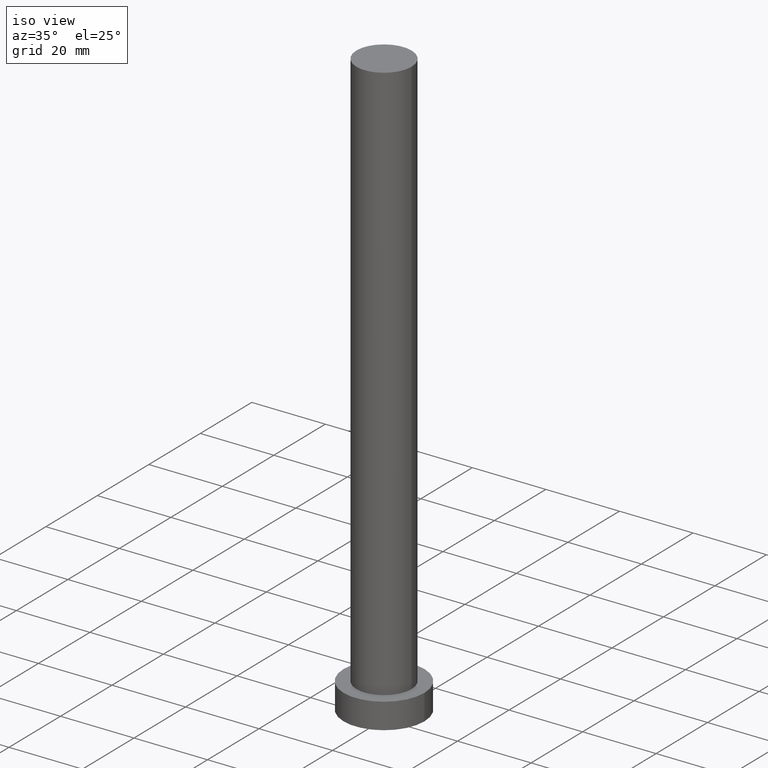
[diagram: clean part render]
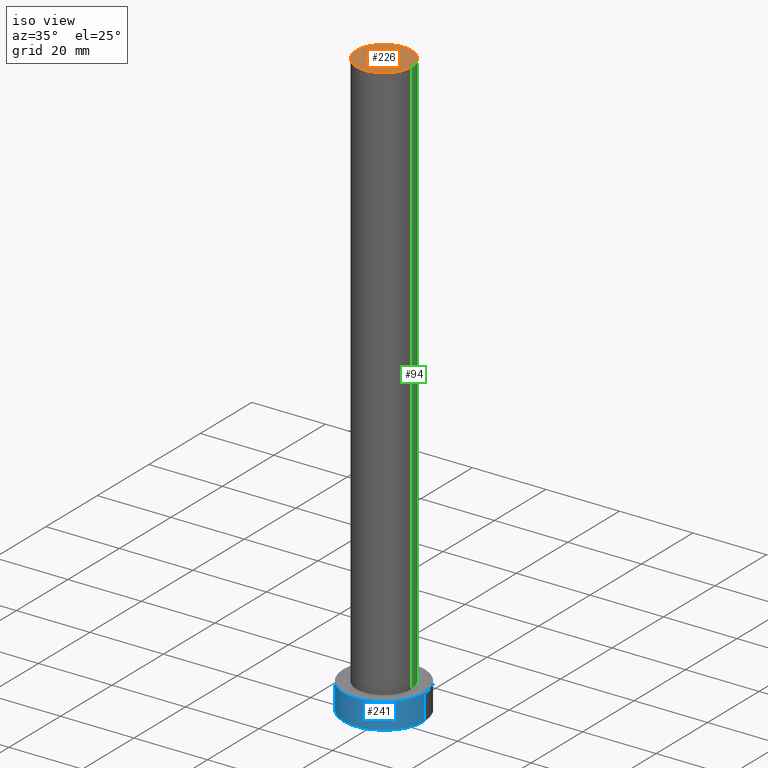
[diagram: same view with three faces highlighted in distinct colors, each labeled with its STEP entity id]
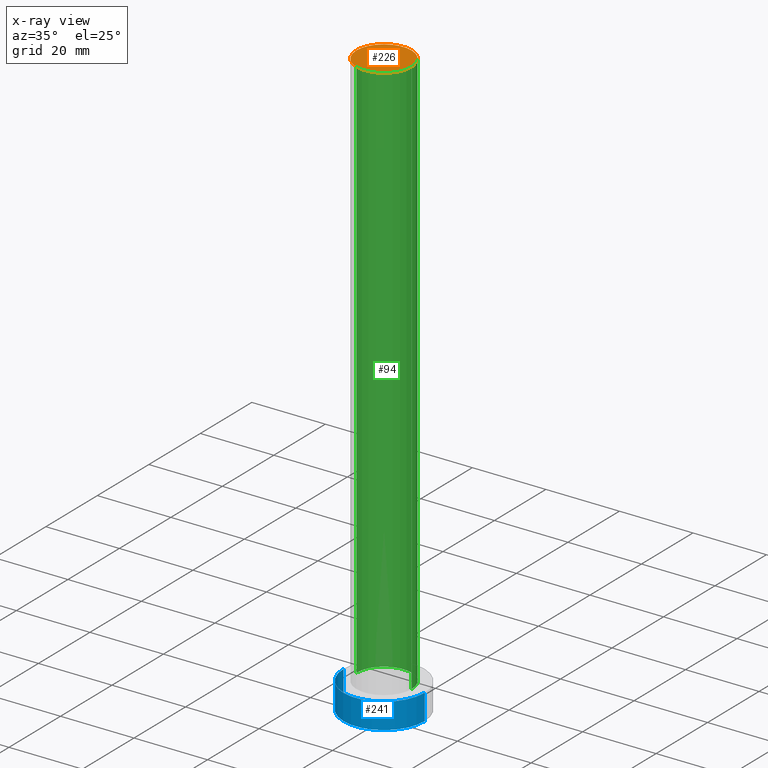
[diagram: x-ray of the same camera — body ghosted, the three highlighted faces saturated]
A machine part, iso view with three faces highlighted in distinct colors.
The next image is the same camera in x-ray (body ghosted, the three faces saturated) — at least one of them is partly hidden behind the body in this view.
Their STEP definitions:

[orange] entity #226 — the highlighted planar face has unit normal (0, 0, 1).
#1 = DIRECTION ( 'NONE',  ( 0.000000000000000000, 0.000000000000000000, 1.000000000000000000 ) ) ;
#13 = DIRECTION ( 'NONE',  ( 0.000000000000000000, 0.000000000000000000, 1.000000000000000000 ) ) ;
#48 = CARTESIAN_POINT ( 'NONE',  ( 7.500000000000000000, 9.184850993605147944E-16, 160.0000000000000000 ) ) ;
#60 = DIRECTION ( 'NONE',  ( 1.000000000000000000, 0.000000000000000000, 0.000000000000000000 ) ) ;
#61 = AXIS2_PLACEMENT_3D ( 'NONE', #218, #124, #145 ) ;
#66 = PLANE ( 'NONE',  #61 ) ;
#78 = VERTEX_POINT ( 'NONE', #161 ) ;
#80 = EDGE_CURVE ( 'NONE', #186, #78, #255, .T. ) ;
#95 = CARTESIAN_POINT ( 'NONE',  ( 0.000000000000000000, 0.000000000000000000, 160.0000000000000000 ) ) ;
#109 = EDGE_LOOP ( 'NONE', ( #129, #128 ) ) ;
#124 = DIRECTION ( 'NONE',  ( 0.000000000000000000, 0.000000000000000000, 1.000000000000000000 ) ) ;
#128 = ORIENTED_EDGE ( 'NONE', *, *, #80, .T. ) ;
#129 = ORIENTED_EDGE ( 'NONE', *, *, #233, .T. ) ;
#138 = AXIS2_PLACEMENT_3D ( 'NONE', #237, #1, #60 ) ;
#143 = AXIS2_PLACEMENT_3D ( 'NONE', #95, #13, #201 ) ;
#145 = DIRECTION ( 'NONE',  ( 1.000000000000000000, 0.000000000000000000, -0.000000000000000000 ) ) ;
#161 = CARTESIAN_POINT ( 'NONE',  ( -7.500000000000000000, 0.000000000000000000, 160.0000000000000000 ) ) ;
#162 = FACE_OUTER_BOUND ( 'NONE', #109, .T. ) ;
#163 = CIRCLE ( 'NONE', #143, 7.500000000000000000 ) ;
#186 = VERTEX_POINT ( 'NONE', #48 ) ;
#201 = DIRECTION ( 'NONE',  ( 1.000000000000000000, 0.000000000000000000, 0.000000000000000000 ) ) ;
#218 = CARTESIAN_POINT ( 'NONE',  ( 0.000000000000000000, 0.000000000000000000, 160.0000000000000000 ) ) ;
#226 = ADVANCED_FACE ( 'NONE', ( #162 ), #66, .T. ) ;
#233 = EDGE_CURVE ( 'NONE', #78, #186, #163, .T. ) ;
#237 = CARTESIAN_POINT ( 'NONE',  ( 0.000000000000000000, 0.000000000000000000, 160.0000000000000000 ) ) ;
#255 = CIRCLE ( 'NONE', #138, 7.500000000000000000 ) ;

[blue] entity #241 — the highlighted cylindrical surface (partial cylindrical patch) has radius 11 mm, axis along (-0, -0, -1).
#2 = DIRECTION ( 'NONE',  ( 0.000000000000000000, 0.000000000000000000, 1.000000000000000000 ) ) ;
#8 = EDGE_CURVE ( 'NONE', #103, #221, #65, .T. ) ;
#10 = DIRECTION ( 'NONE',  ( -0.000000000000000000, -0.000000000000000000, -1.000000000000000000 ) ) ;
#26 = AXIS2_PLACEMENT_3D ( 'NONE', #222, #10, #98 ) ;
#30 = ORIENTED_EDGE ( 'NONE', *, *, #49, .T. ) ;
#49 = EDGE_CURVE ( 'NONE', #58, #245, #215, .T. ) ;
#56 = VECTOR ( 'NONE', #232, 1000.000000000000000 ) ;
#58 = VERTEX_POINT ( 'NONE', #135 ) ;
#65 = LINE ( 'NONE', #191, #56 ) ;
#68 = EDGE_CURVE ( 'NONE', #58, #103, #104, .T. ) ;
#70 = CIRCLE ( 'NONE', #242, 11.00000000000000000 ) ;
#77 = ORIENTED_EDGE ( 'NONE', *, *, #207, .T. ) ;
#84 = DIRECTION ( 'NONE',  ( -0.000000000000000000, -0.000000000000000000, -1.000000000000000000 ) ) ;
#92 = CARTESIAN_POINT ( 'NONE',  ( 11.00000000000000000, 1.347111479062088405E-15, 0.000000000000000000 ) ) ;
#96 = ORIENTED_EDGE ( 'NONE', *, *, #8, .F. ) ;
#98 = DIRECTION ( 'NONE',  ( -1.000000000000000000, 0.000000000000000000, 0.000000000000000000 ) ) ;
#103 = VERTEX_POINT ( 'NONE', #209 ) ;
#104 = CIRCLE ( 'NONE', #197, 11.00000000000000000 ) ;
#107 = DIRECTION ( 'NONE',  ( 0.000000000000000000, 0.000000000000000000, 1.000000000000000000 ) ) ;
#121 = CARTESIAN_POINT ( 'NONE',  ( 0.000000000000000000, 0.000000000000000000, 7.000000000000000000 ) ) ;
#135 = CARTESIAN_POINT ( 'NONE',  ( -11.00000000000000000, 0.000000000000000000, 7.000000000000000000 ) ) ;
#141 = CARTESIAN_POINT ( 'NONE',  ( -11.00000000000000000, 0.000000000000000000, 7.000000000000000000 ) ) ;
#166 = ORIENTED_EDGE ( 'NONE', *, *, #68, .F. ) ;
#169 = EDGE_LOOP ( 'NONE', ( #96, #166, #30, #77 ) ) ;
#178 = DIRECTION ( 'NONE',  ( 1.000000000000000000, 0.000000000000000000, 0.000000000000000000 ) ) ;
#190 = FACE_OUTER_BOUND ( 'NONE', #169, .T. ) ;
#191 = CARTESIAN_POINT ( 'NONE',  ( 11.00000000000000000, 1.347111479062088405E-15, 7.000000000000000000 ) ) ;
#197 = AXIS2_PLACEMENT_3D ( 'NONE', #121, #2, #178 ) ;
#199 = DIRECTION ( 'NONE',  ( 1.000000000000000000, 0.000000000000000000, 0.000000000000000000 ) ) ;
#205 = CYLINDRICAL_SURFACE ( 'NONE', #26, 11.00000000000000000 ) ;
#207 = EDGE_CURVE ( 'NONE', #245, #221, #70, .T. ) ;
#209 = CARTESIAN_POINT ( 'NONE',  ( 11.00000000000000000, 1.347111479062088405E-15, 7.000000000000000000 ) ) ;
#215 = LINE ( 'NONE', #141, #223 ) ;
#221 = VERTEX_POINT ( 'NONE', #92 ) ;
#222 = CARTESIAN_POINT ( 'NONE',  ( 0.000000000000000000, 0.000000000000000000, 7.000000000000000000 ) ) ;
#223 = VECTOR ( 'NONE', #84, 1000.000000000000000 ) ;
#232 = DIRECTION ( 'NONE',  ( -0.000000000000000000, -0.000000000000000000, -1.000000000000000000 ) ) ;
#239 = CARTESIAN_POINT ( 'NONE',  ( 0.000000000000000000, 0.000000000000000000, 0.000000000000000000 ) ) ;
#241 = ADVANCED_FACE ( 'NONE', ( #190 ), #205, .T. ) ;
#242 = AXIS2_PLACEMENT_3D ( 'NONE', #239, #107, #199 ) ;
#245 = VERTEX_POINT ( 'NONE', #248 ) ;
#248 = CARTESIAN_POINT ( 'NONE',  ( -11.00000000000000000, 0.000000000000000000, 0.000000000000000000 ) ) ;

[green] entity #94 — the highlighted cylindrical surface (edge-blend (fillet) strip) has radius 7.5 mm, axis along (-0, -0, -1).
#1 = DIRECTION ( 'NONE',  ( 0.000000000000000000, 0.000000000000000000, 1.000000000000000000 ) ) ;
#9 = ORIENTED_EDGE ( 'NONE', *, *, #148, .T. ) ;
#19 = CARTESIAN_POINT ( 'NONE',  ( -7.500000000000000000, 0.000000000000000000, 160.0000000000000000 ) ) ;
#20 = DIRECTION ( 'NONE',  ( 0.000000000000000000, 0.000000000000000000, 1.000000000000000000 ) ) ;
#25 = EDGE_CURVE ( 'NONE', #78, #76, #120, .T. ) ;
#34 = ORIENTED_EDGE ( 'NONE', *, *, #25, .F. ) ;
#37 = VECTOR ( 'NONE', #85, 1000.000000000000000 ) ;
#39 = DIRECTION ( 'NONE',  ( 1.000000000000000000, 0.000000000000000000, 0.000000000000000000 ) ) ;
#44 = CARTESIAN_POINT ( 'NONE',  ( 7.500000000000000000, 9.184850993605147944E-16, 7.000000000000000000 ) ) ;
#45 = DIRECTION ( 'NONE',  ( -1.000000000000000000, 0.000000000000000000, 0.000000000000000000 ) ) ;
#48 = CARTESIAN_POINT ( 'NONE',  ( 7.500000000000000000, 9.184850993605147944E-16, 160.0000000000000000 ) ) ;
#55 = ORIENTED_EDGE ( 'NONE', *, *, #71, .T. ) ;
#59 = VERTEX_POINT ( 'NONE', #44 ) ;
#60 = DIRECTION ( 'NONE',  ( 1.000000000000000000, 0.000000000000000000, 0.000000000000000000 ) ) ;
#71 = EDGE_CURVE ( 'NONE', #59, #76, #79, .T. ) ;
#76 = VERTEX_POINT ( 'NONE', #90 ) ;
#78 = VERTEX_POINT ( 'NONE', #161 ) ;
#79 = CIRCLE ( 'NONE', #240, 7.500000000000000000 ) ;
#80 = EDGE_CURVE ( 'NONE', #186, #78, #255, .T. ) ;
#82 = CYLINDRICAL_SURFACE ( 'NONE', #126, 7.500000000000000000 ) ;
#85 = DIRECTION ( 'NONE',  ( -0.000000000000000000, -0.000000000000000000, -1.000000000000000000 ) ) ;
#90 = CARTESIAN_POINT ( 'NONE',  ( -7.500000000000000000, 0.000000000000000000, 7.000000000000000000 ) ) ;
#94 = ADVANCED_FACE ( 'NONE', ( #217 ), #82, .T. ) ;
#120 = LINE ( 'NONE', #19, #211 ) ;
#126 = AXIS2_PLACEMENT_3D ( 'NONE', #236, #139, #45 ) ;
#138 = AXIS2_PLACEMENT_3D ( 'NONE', #237, #1, #60 ) ;
#139 = DIRECTION ( 'NONE',  ( -0.000000000000000000, -0.000000000000000000, -1.000000000000000000 ) ) ;
#148 = EDGE_CURVE ( 'NONE', #186, #59, #160, .T. ) ;
#154 = CARTESIAN_POINT ( 'NONE',  ( 0.000000000000000000, 0.000000000000000000, 7.000000000000000000 ) ) ;
#160 = LINE ( 'NONE', #231, #37 ) ;
#161 = CARTESIAN_POINT ( 'NONE',  ( -7.500000000000000000, 0.000000000000000000, 160.0000000000000000 ) ) ;
#180 = DIRECTION ( 'NONE',  ( -0.000000000000000000, -0.000000000000000000, -1.000000000000000000 ) ) ;
#186 = VERTEX_POINT ( 'NONE', #48 ) ;
#203 = EDGE_LOOP ( 'NONE', ( #246, #9, #55, #34 ) ) ;
#211 = VECTOR ( 'NONE', #180, 1000.000000000000000 ) ;
#217 = FACE_OUTER_BOUND ( 'NONE', #203, .T. ) ;
#231 = CARTESIAN_POINT ( 'NONE',  ( 7.500000000000000000, 9.184850993605147944E-16, 160.0000000000000000 ) ) ;
#236 = CARTESIAN_POINT ( 'NONE',  ( 0.000000000000000000, 0.000000000000000000, 160.0000000000000000 ) ) ;
#237 = CARTESIAN_POINT ( 'NONE',  ( 0.000000000000000000, 0.000000000000000000, 160.0000000000000000 ) ) ;
#240 = AXIS2_PLACEMENT_3D ( 'NONE', #154, #20, #39 ) ;
#246 = ORIENTED_EDGE ( 'NONE', *, *, #80, .F. ) ;
#255 = CIRCLE ( 'NONE', #138, 7.500000000000000000 ) ;